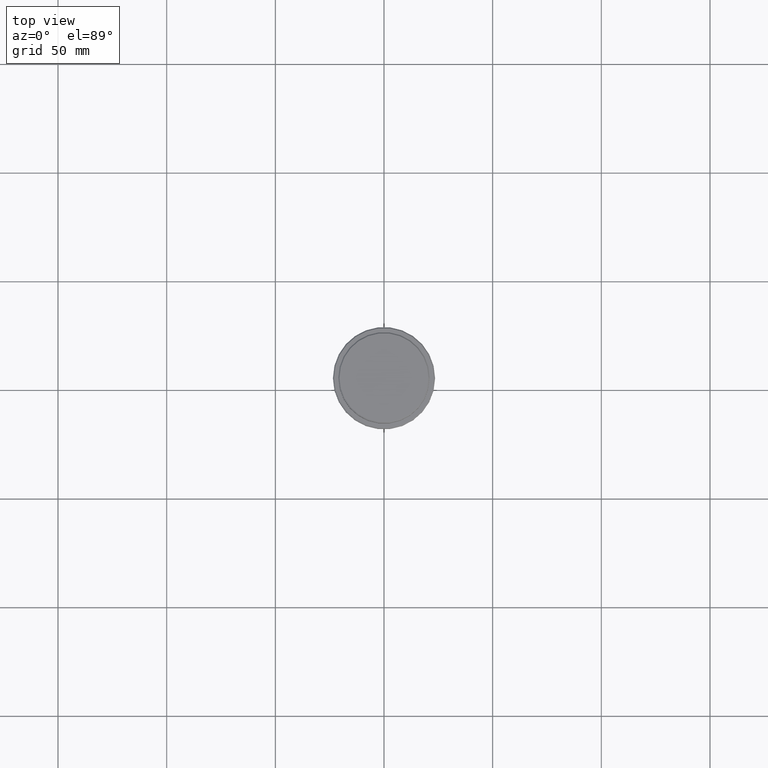
[diagram: clean part render]
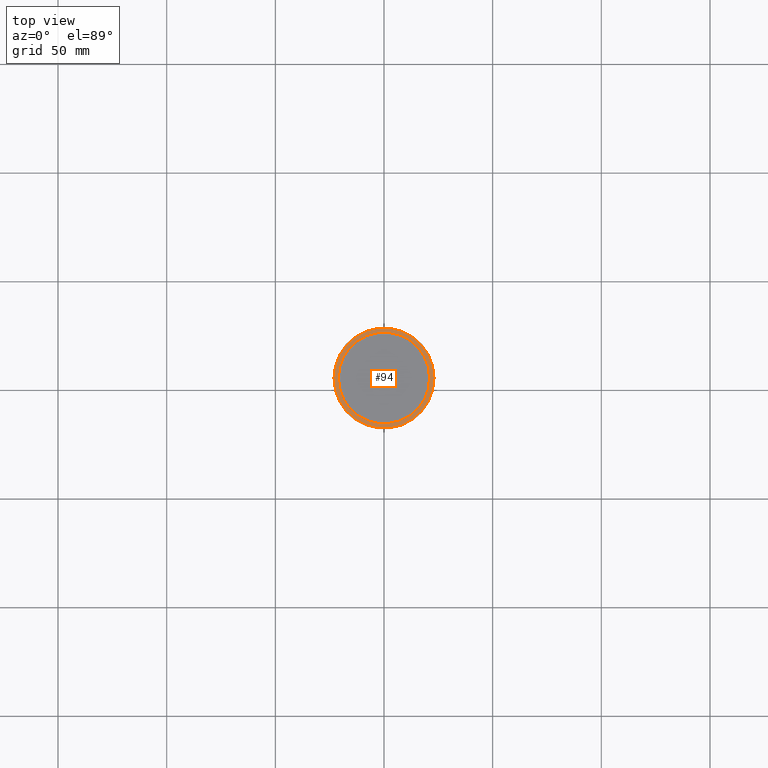
[diagram: same view with one face highlighted and labeled with its STEP entity id]
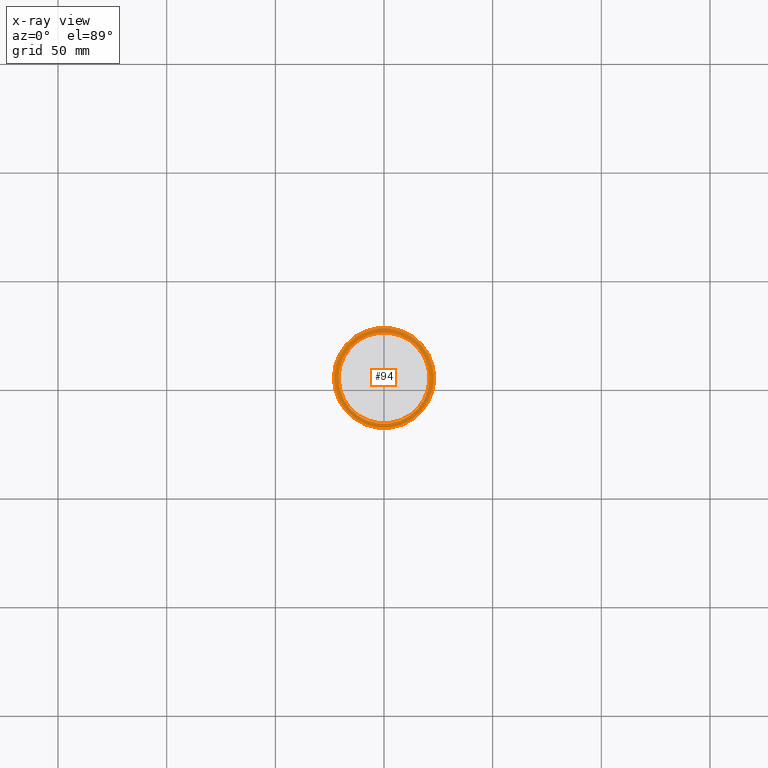
[diagram: x-ray of the same camera — body ghosted, the highlighted face saturated]
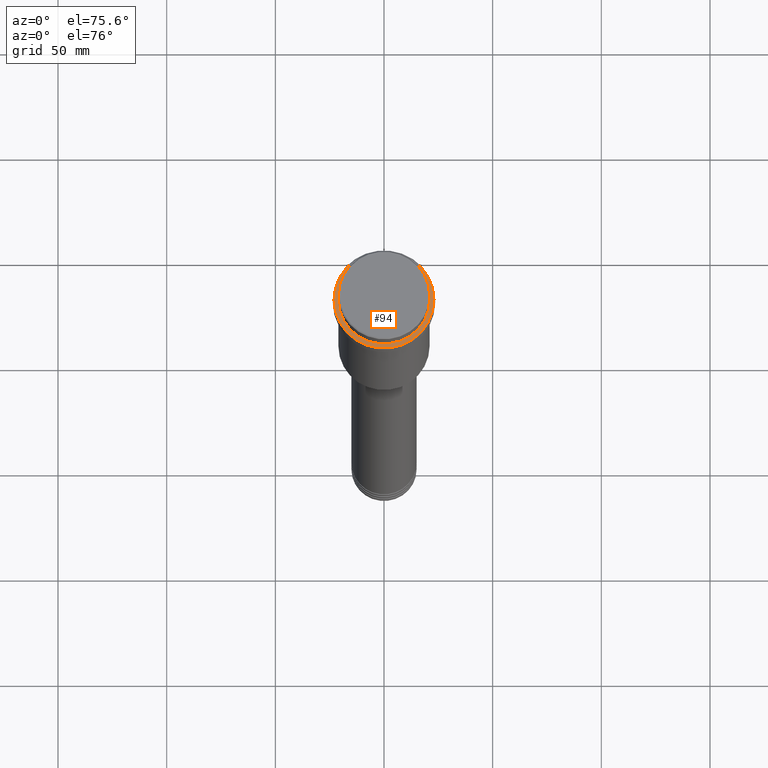
[diagram: same view with one face highlighted and labeled with its STEP entity id]
A machine part, top view. The second image highlights one B-rep face of the part: STEP entity #94.
The next image is the same camera in x-ray: the body ghosted, the highlighted face saturated — about 0% of this face is hidden behind the body in this view.
A second angle (auxiliary view) of the same face is appended — the face is thin or edge-on in the first view.
In plain terms, the highlighted planar face has unit normal (0, -0, 1).
Its self-contained STEP definition (entity closure, byte-faithful):
#2 = ORIENTED_EDGE ( 'NONE', *, *, #533, .T. ) ;
#21 = DIRECTION ( 'NONE',  ( 0.000000000000000000, 0.000000000000000000, -1.000000000000000000 ) ) ;
#34 = EDGE_CURVE ( 'NONE', #1230, #1241, #821, .T. ) ;
#39 = VERTEX_POINT ( 'NONE', #840 ) ;
#94 = ADVANCED_FACE ( 'NONE', ( #835, #1384 ), #1162, .T. ) ;
#134 = CARTESIAN_POINT ( 'NONE',  ( 0.000000000000000000, 0.000000000000000000, -9.000000000000001776 ) ) ;
#306 = EDGE_LOOP ( 'NONE', ( #442, #1409 ) ) ;
#367 = CIRCLE ( 'NONE', #640, 23.00000000000005329 ) ;
#409 = DIRECTION ( 'NONE',  ( 1.000000000000000000, 0.000000000000000000, 0.000000000000000000 ) ) ;
#417 = CIRCLE ( 'NONE', #1208, 20.99999999999999289 ) ;
#442 = ORIENTED_EDGE ( 'NONE', *, *, #34, .T. ) ;
#448 = CARTESIAN_POINT ( 'NONE',  ( 0.000000000000000000, 0.000000000000000000, -9.000000000000001776 ) ) ;
#452 = EDGE_CURVE ( 'NONE', #1241, #1230, #367, .T. ) ;
#491 = CARTESIAN_POINT ( 'NONE',  ( 0.000000000000000000, 0.000000000000000000, -9.000000000000001776 ) ) ;
#501 = DIRECTION ( 'NONE',  ( 0.000000000000000000, -0.000000000000000000, 1.000000000000000000 ) ) ;
#505 = CIRCLE ( 'NONE', #545, 20.99999999999999289 ) ;
#530 = CARTESIAN_POINT ( 'NONE',  ( 0.000000000000000000, 0.000000000000000000, -9.000000000000001776 ) ) ;
#533 = EDGE_CURVE ( 'NONE', #39, #716, #505, .T. ) ;
#545 = AXIS2_PLACEMENT_3D ( 'NONE', #448, #757, #1078 ) ;
#640 = AXIS2_PLACEMENT_3D ( 'NONE', #530, #1193, #1302 ) ;
#691 = ORIENTED_EDGE ( 'NONE', *, *, #1224, .T. ) ;
#697 = DIRECTION ( 'NONE',  ( -0.000000000000000000, -0.000000000000000000, 1.000000000000000000 ) ) ;
#716 = VERTEX_POINT ( 'NONE', #1067 ) ;
#757 = DIRECTION ( 'NONE',  ( 0.000000000000000000, 0.000000000000000000, -1.000000000000000000 ) ) ;
#782 = DIRECTION ( 'NONE',  ( 1.000000000000000000, 0.000000000000000000, 0.000000000000000000 ) ) ;
#821 = CIRCLE ( 'NONE', #1026, 23.00000000000005329 ) ;
#835 = FACE_OUTER_BOUND ( 'NONE', #306, .T. ) ;
#840 = CARTESIAN_POINT ( 'NONE',  ( 20.99999999999999289, 0.000000000000000000, -9.000000000000001776 ) ) ;
#886 = EDGE_LOOP ( 'NONE', ( #2, #691 ) ) ;
#905 = CARTESIAN_POINT ( 'NONE',  ( 23.00000000000005329, 2.847303808017599689E-15, -9.000000000000001776 ) ) ;
#918 = AXIS2_PLACEMENT_3D ( 'NONE', #1263, #501, #409 ) ;
#927 = DIRECTION ( 'NONE',  ( 1.000000000000000000, 0.000000000000000000, 0.000000000000000000 ) ) ;
#1005 = CARTESIAN_POINT ( 'NONE',  ( -23.00000000000005329, 0.000000000000000000, -9.000000000000001776 ) ) ;
#1026 = AXIS2_PLACEMENT_3D ( 'NONE', #491, #697, #927 ) ;
#1067 = CARTESIAN_POINT ( 'NONE',  ( -20.99999999999999289, 2.571758278209440872E-15, -9.000000000000001776 ) ) ;
#1078 = DIRECTION ( 'NONE',  ( 1.000000000000000000, 0.000000000000000000, 0.000000000000000000 ) ) ;
#1162 = PLANE ( 'NONE',  #918 ) ;
#1193 = DIRECTION ( 'NONE',  ( -0.000000000000000000, -0.000000000000000000, 1.000000000000000000 ) ) ;
#1208 = AXIS2_PLACEMENT_3D ( 'NONE', #134, #21, #782 ) ;
#1224 = EDGE_CURVE ( 'NONE', #716, #39, #417, .T. ) ;
#1230 = VERTEX_POINT ( 'NONE', #1005 ) ;
#1241 = VERTEX_POINT ( 'NONE', #905 ) ;
#1263 = CARTESIAN_POINT ( 'NONE',  ( 0.000000000000000000, 20.49999999999999645, -9.000000000000001776 ) ) ;
#1302 = DIRECTION ( 'NONE',  ( 1.000000000000000000, 0.000000000000000000, 0.000000000000000000 ) ) ;
#1384 = FACE_BOUND ( 'NONE', #886, .T. ) ;
#1409 = ORIENTED_EDGE ( 'NONE', *, *, #452, .T. ) ;